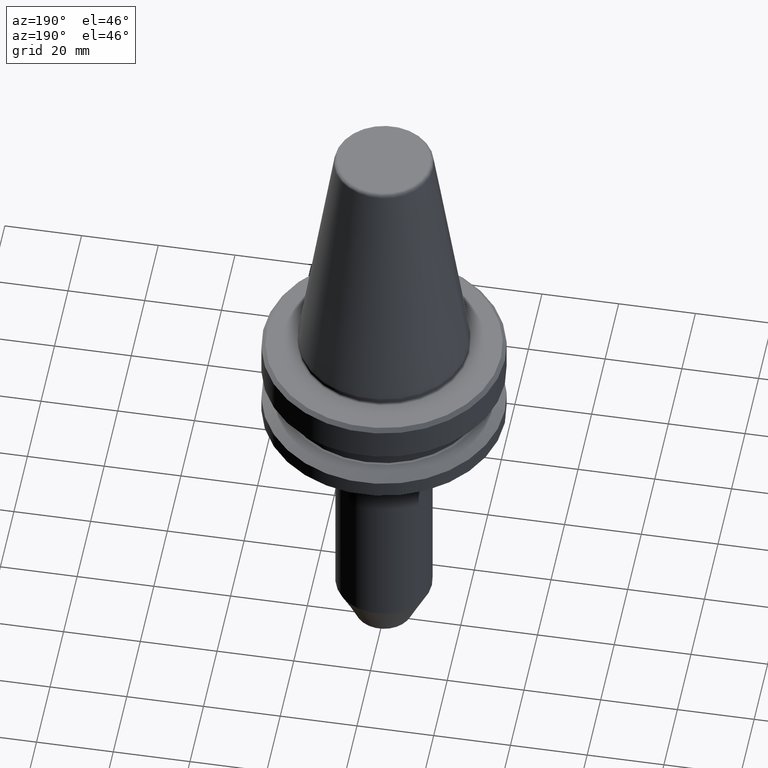
[diagram: clean part render]
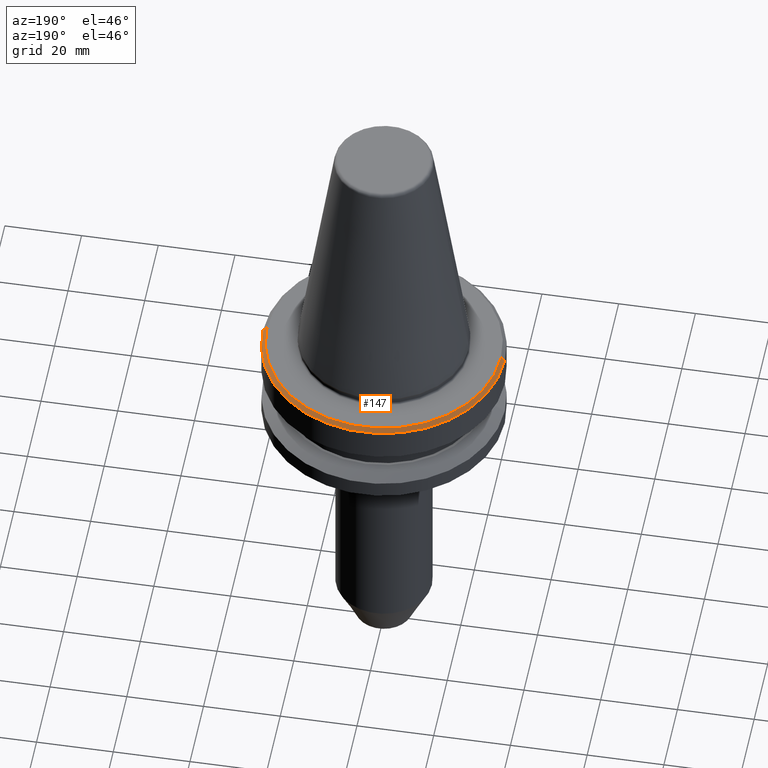
[diagram: same view with one face highlighted and labeled with its STEP entity id]
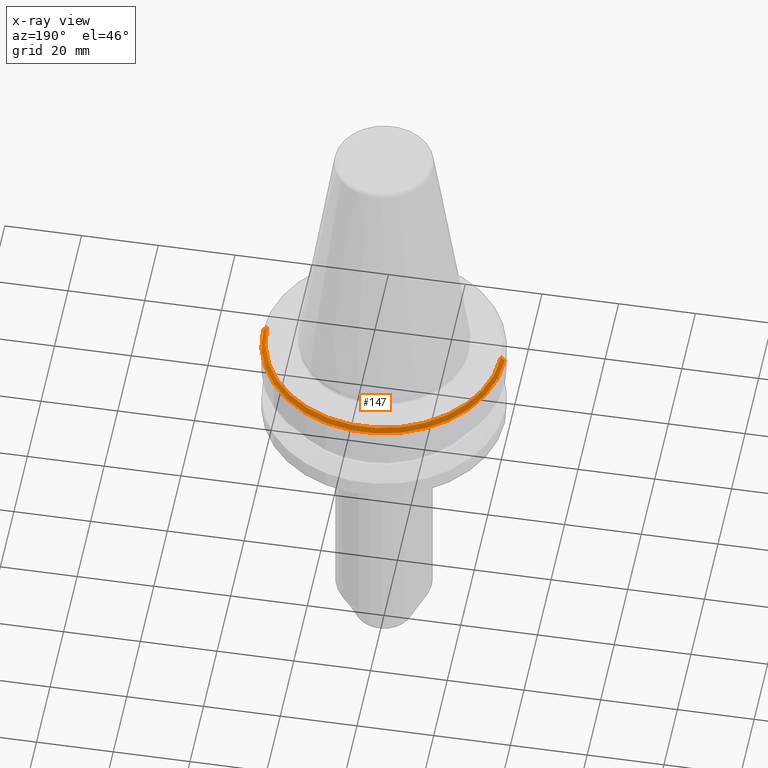
[diagram: x-ray of the same camera — body ghosted, the highlighted face saturated]
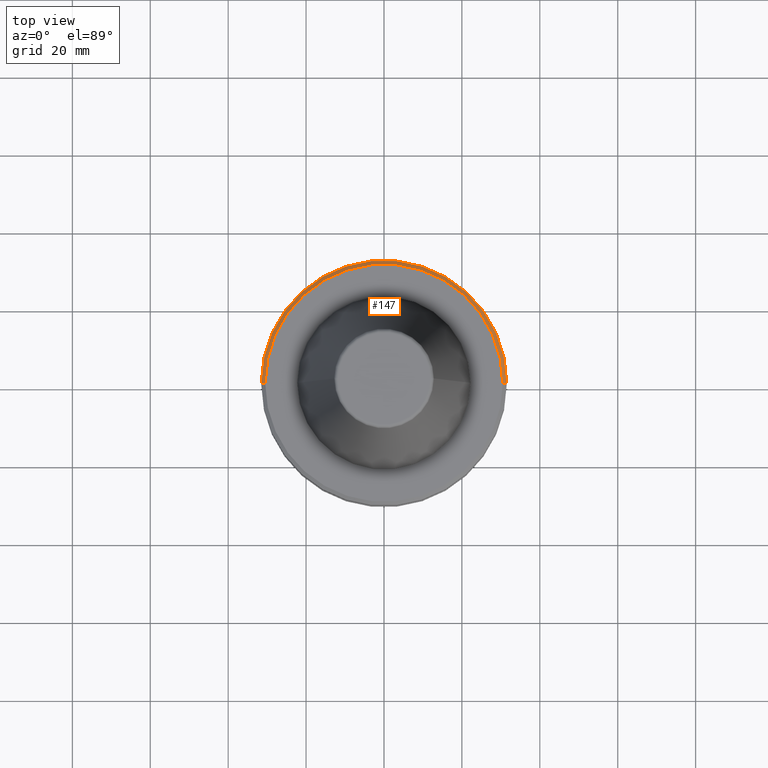
[diagram: same view with one face highlighted and labeled with its STEP entity id]
A machine part, auxiliary view. The second image highlights one B-rep face of the part: STEP entity #147.
The next image is the same camera in x-ray: the body ghosted, the highlighted face saturated — about 0% of this face is hidden behind the body in this view.
A second angle (top view) of the same face is appended — the face is thin or edge-on in the first view.
In plain terms, the highlighted conical surface has half-angle 45 deg.
Its self-contained STEP definition (entity closure, byte-faithful):
#5 = CARTESIAN_POINT ( 'NONE',  ( -31.49999999999975100, 0.0000000000000000000, -3.000000000000557800 ) ) ;
#88 = DIRECTION ( 'NONE',  ( -0.0000000000000000000, -0.0000000000000000000, 1.000000000000000000 ) ) ;
#102 = CARTESIAN_POINT ( 'NONE',  ( 0.0000000000000000000, 0.0000000000000000000, -3.000000000000557800 ) ) ;
#106 = CARTESIAN_POINT ( 'NONE',  ( -30.49999999999975100, 0.0000000000000000000, -2.000000000000556900 ) ) ;
#107 = AXIS2_PLACEMENT_3D ( 'NONE', #526, #88, #852 ) ;
#109 = CARTESIAN_POINT ( 'NONE',  ( 30.49999999999975100, 3.796405077356764300E-015, -2.000000000000556900 ) ) ;
#119 = FACE_OUTER_BOUND ( 'NONE', #211, .T. ) ;
#147 = ADVANCED_FACE ( 'NONE', ( #119 ), #155, .T. ) ;
#155 = CONICAL_SURFACE ( 'NONE', #639, 31.49999999999975100, 0.7853981633974482800 ) ;
#170 = CARTESIAN_POINT ( 'NONE',  ( 31.49999999999975100, 0.0000000000000000000, -3.000000000000557800 ) ) ;
#194 = ORIENTED_EDGE ( 'NONE', *, *, #880, .T. ) ;
#195 = CARTESIAN_POINT ( 'NONE',  ( -31.49999999999975100, 3.857637417314131900E-015, -3.000000000000557800 ) ) ;
#211 = EDGE_LOOP ( 'NONE', ( #523, #194, #669, #315 ) ) ;
#252 = LINE ( 'NONE', #778, #569 ) ;
#257 = VERTEX_POINT ( 'NONE', #195 ) ;
#263 = VERTEX_POINT ( 'NONE', #109 ) ;
#266 = EDGE_CURVE ( 'NONE', #716, #257, #578, .T. ) ;
#315 = ORIENTED_EDGE ( 'NONE', *, *, #266, .F. ) ;
#375 = CARTESIAN_POINT ( 'NONE',  ( 0.0000000000000000000, 0.0000000000000000000, -3.000000000000557800 ) ) ;
#392 = EDGE_CURVE ( 'NONE', #263, #716, #497, .T. ) ;
#419 = AXIS2_PLACEMENT_3D ( 'NONE', #102, #462, #839 ) ;
#440 = CIRCLE ( 'NONE', #419, 31.49999999999975100 ) ;
#462 = DIRECTION ( 'NONE',  ( -0.0000000000000000000, -0.0000000000000000000, 1.000000000000000000 ) ) ;
#469 = DIRECTION ( 'NONE',  ( 0.7071067811865474600, 8.659560562354931600E-017, -0.7071067811865475700 ) ) ;
#497 = CIRCLE ( 'NONE', #107, 30.49999999999975100 ) ;
#523 = ORIENTED_EDGE ( 'NONE', *, *, #392, .F. ) ;
#526 = CARTESIAN_POINT ( 'NONE',  ( 0.0000000000000000000, 0.0000000000000000000, -2.000000000000556900 ) ) ;
#569 = VECTOR ( 'NONE', #469, 1000.000000000000000 ) ;
#578 = LINE ( 'NONE', #5, #694 ) ;
#607 = DIRECTION ( 'NONE',  ( 0.0000000000000000000, 0.0000000000000000000, -1.000000000000000000 ) ) ;
#639 = AXIS2_PLACEMENT_3D ( 'NONE', #375, #607, #653 ) ;
#653 = DIRECTION ( 'NONE',  ( -1.000000000000000000, 0.0000000000000000000, 0.0000000000000000000 ) ) ;
#669 = ORIENTED_EDGE ( 'NONE', *, *, #889, .T. ) ;
#694 = VECTOR ( 'NONE', #767, 1000.000000000000000 ) ;
#698 = VERTEX_POINT ( 'NONE', #170 ) ;
#716 = VERTEX_POINT ( 'NONE', #106 ) ;
#767 = DIRECTION ( 'NONE',  ( -0.7071067811865474600, 0.0000000000000000000, -0.7071067811865475700 ) ) ;
#778 = CARTESIAN_POINT ( 'NONE',  ( 31.49999999999975100, 3.857637417314131900E-015, -3.000000000000557800 ) ) ;
#839 = DIRECTION ( 'NONE',  ( 1.000000000000000000, 0.0000000000000000000, 0.0000000000000000000 ) ) ;
#852 = DIRECTION ( 'NONE',  ( 1.000000000000000000, 0.0000000000000000000, 0.0000000000000000000 ) ) ;
#880 = EDGE_CURVE ( 'NONE', #263, #698, #252, .T. ) ;
#889 = EDGE_CURVE ( 'NONE', #698, #257, #440, .T. ) ;